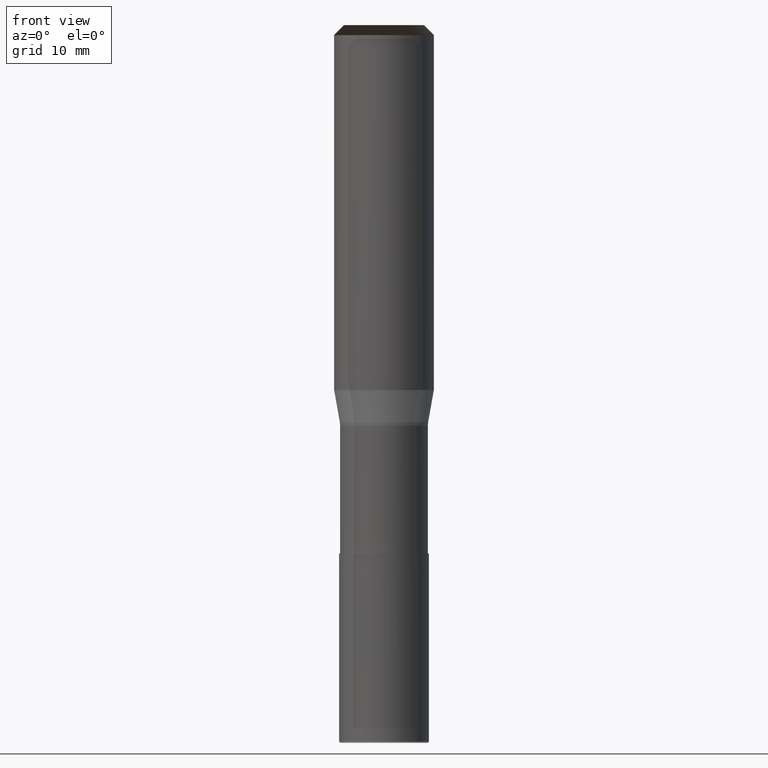
[diagram: clean part render]
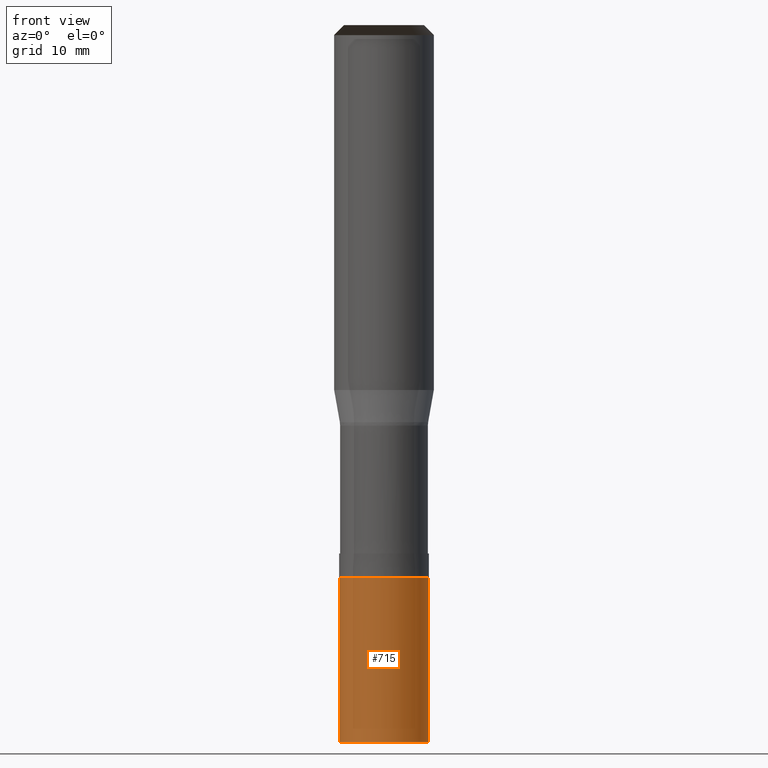
[diagram: same view with one face highlighted and labeled with its STEP entity id]
A machine part, front view. The second image highlights one B-rep face of the part: STEP entity #715.
In plain terms, the highlighted face is a freeform B-spline surface patch.
Its self-contained STEP definition (entity closure, byte-faithful):
#498=CARTESIAN_POINT('',(4.5,0.0,-35.302769091771));
#502=CARTESIAN_POINT('',(-4.5,0.0,-35.302769091771));
#503=CARTESIAN_POINT('',(4.5,0.0,-18.777769091771));
#507=CARTESIAN_POINT('',(-4.5,0.0,-18.777769091771));
#512=CARTESIAN_POINT('',(-4.5,-4.5,-35.302769091771));
#513=CARTESIAN_POINT('',(0.0,-4.5,-35.302769091771));
#514=CARTESIAN_POINT('',(4.5,-4.5,-35.302769091771));
#515=CARTESIAN_POINT('',(-4.5,-4.5,-18.777769091771));
#516=CARTESIAN_POINT('',(0.0,-4.5,-18.777769091771));
#517=CARTESIAN_POINT('',(4.5,-4.5,-18.777769091771));
#696=(
BOUNDED_SURFACE()
B_SPLINE_SURFACE(1,2,(
(#502,#512,#513,#514,#498),
(#507,#515,#516,#517,#503)
), .UNSPECIFIED.,.F.,.F.,.F.)
B_SPLINE_SURFACE_WITH_KNOTS((2,2),(3,2,3),(
0.0,1.0),(
0.0,0.5,1.0), .UNSPECIFIED.)
GEOMETRIC_REPRESENTATION_ITEM()
RATIONAL_B_SPLINE_SURFACE(((1.0,0.707106781187,1.0,0.707106781187,1.0),
(1.0,0.707106781187,1.0,0.707106781187,1.0)
))
REPRESENTATION_ITEM('')
SURFACE()
);
#697=(
BOUNDED_CURVE()
B_SPLINE_CURVE(2,(#498,#514,#513,#512,#502),.UNSPECIFIED.,.F.,.F.)
B_SPLINE_CURVE_WITH_KNOTS((3,2,3),
(0.0,0.5,1.0),.UNSPECIFIED.)
CURVE()
GEOMETRIC_REPRESENTATION_ITEM()
RATIONAL_B_SPLINE_CURVE((1.0,0.707106781187,1.0,0.707106781187,1.0))
REPRESENTATION_ITEM('')
);
#698=(
BOUNDED_CURVE()
B_SPLINE_CURVE(1,(#502,#507),.UNSPECIFIED.,.F.,.F.)
B_SPLINE_CURVE_WITH_KNOTS((2,2),
(0.0,1.0),.UNSPECIFIED.)
CURVE()
GEOMETRIC_REPRESENTATION_ITEM()
RATIONAL_B_SPLINE_CURVE((1.0,1.0))
REPRESENTATION_ITEM('')
);
#699=(
BOUNDED_CURVE()
B_SPLINE_CURVE(2,(#507,#515,#516,#517,#503),.UNSPECIFIED.,.F.,.F.)
B_SPLINE_CURVE_WITH_KNOTS((3,2,3),
(0.0,0.5,1.0),.UNSPECIFIED.)
CURVE()
GEOMETRIC_REPRESENTATION_ITEM()
RATIONAL_B_SPLINE_CURVE((1.0,0.707106781187,1.0,0.707106781187,1.0))
REPRESENTATION_ITEM('')
);
#700=(
BOUNDED_CURVE()
B_SPLINE_CURVE(1,(#503,#498),.UNSPECIFIED.,.F.,.F.)
B_SPLINE_CURVE_WITH_KNOTS((2,2),
(0.0,1.0),.UNSPECIFIED.)
CURVE()
GEOMETRIC_REPRESENTATION_ITEM()
RATIONAL_B_SPLINE_CURVE((1.0,1.0))
REPRESENTATION_ITEM('')
);
#701=VERTEX_POINT('',#498);
#702=VERTEX_POINT('',#502);
#703=VERTEX_POINT('',#503);
#704=VERTEX_POINT('',#507);
#705=EDGE_CURVE('',#701,#702,#697,.T.);
#706=EDGE_CURVE('',#702,#704,#698,.T.);
#707=EDGE_CURVE('',#704,#703,#699,.T.);
#708=EDGE_CURVE('',#703,#701,#700,.T.);
#709=ORIENTED_EDGE('',*,*,#705,.T.);
#710=ORIENTED_EDGE('',*,*,#706,.T.);
#711=ORIENTED_EDGE('',*,*,#707,.T.);
#712=ORIENTED_EDGE('',*,*,#708,.T.);
#713=EDGE_LOOP('',(#709,#710,#711,#712));
#714=FACE_OUTER_BOUND('',#713,.T.);
#715=ADVANCED_FACE('',(#714),#696,.T.);